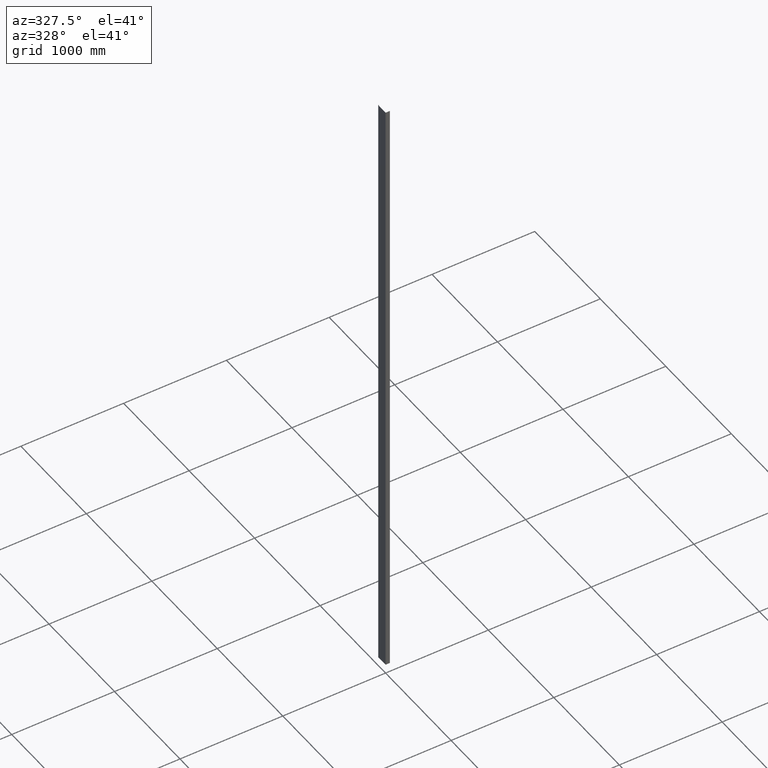
[diagram: clean part render]
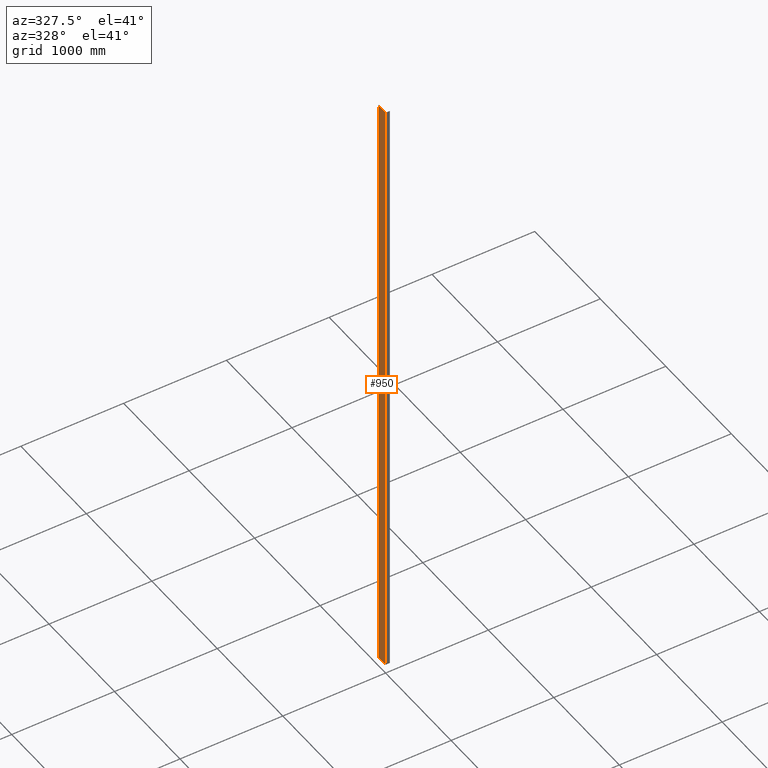
[diagram: same view with one face highlighted and labeled with its STEP entity id]
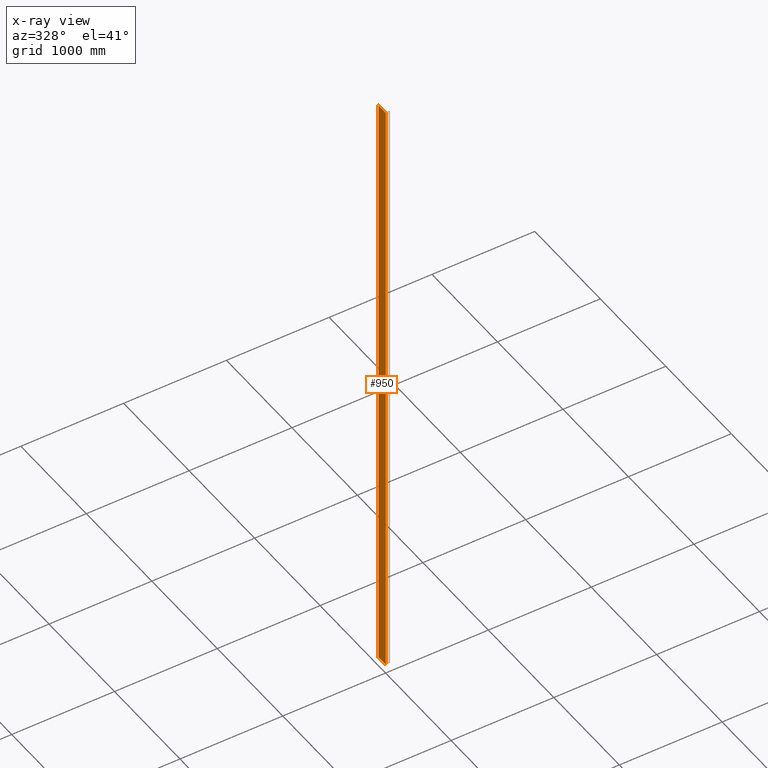
[diagram: x-ray of the same camera — body ghosted, the highlighted face saturated]
A machine part, auxiliary view. The second image highlights one B-rep face of the part: STEP entity #950.
The next image is the same camera in x-ray: the body ghosted, the highlighted face saturated — about 0% of this face is hidden behind the body in this view.
In plain terms, the highlighted planar face has unit normal (1, 0, -0).
Its self-contained STEP definition (entity closure, byte-faithful):
#950 = ADVANCED_FACE ( 'NONE', ( #10253 ), #7305, .F. ) ;
#1099 = LINE ( 'NONE', #7016, #11752 ) ;
#1340 = VECTOR ( 'NONE', #4384, 1000.000000000000000 ) ;
#2399 = EDGE_CURVE ( 'NONE', #2804, #3406, #1099, .T. ) ;
#2464 = EDGE_LOOP ( 'NONE', ( #4192, #10639, #7463, #10441 ) ) ;
#2804 = VERTEX_POINT ( 'NONE', #12902 ) ;
#2876 = CARTESIAN_POINT ( 'NONE',  ( -1.354459359858079800E-014, 112.3000000000011800, -3000.000000000000000 ) ) ;
#2929 = DIRECTION ( 'NONE',  ( 1.000000000000000000, 1.224646799147353000E-016, -0.0000000000000000000 ) ) ;
#3295 = CARTESIAN_POINT ( 'NONE',  ( -1.354459359858079800E-014, 112.3000000000011800, 3000.000000000000000 ) ) ;
#3406 = VERTEX_POINT ( 'NONE', #12279 ) ;
#3692 = CARTESIAN_POINT ( 'NONE',  ( -1.354459359858079800E-014, 112.3000000000011800, -3000.000000000000000 ) ) ;
#3955 = DIRECTION ( 'NONE',  ( -1.224646799147353000E-016, 1.000000000000000000, 0.0000000000000000000 ) ) ;
#4192 = ORIENTED_EDGE ( 'NONE', *, *, #8386, .T. ) ;
#4384 = DIRECTION ( 'NONE',  ( 1.224646799147353200E-016, -1.000000000000000000, 0.0000000000000000000 ) ) ;
#4681 = DIRECTION ( 'NONE',  ( -0.0000000000000000000, -0.0000000000000000000, -1.000000000000000000 ) ) ;
#5279 = EDGE_CURVE ( 'NONE', #10515, #6566, #8032, .T. ) ;
#5493 = CARTESIAN_POINT ( 'NONE',  ( -1.354459359858079800E-014, 112.3000000000011800, 3000.000000000000000 ) ) ;
#6122 = VECTOR ( 'NONE', #7742, 1000.000000000000000 ) ;
#6566 = VERTEX_POINT ( 'NONE', #2876 ) ;
#6827 = AXIS2_PLACEMENT_3D ( 'NONE', #11666, #2929, #3955 ) ;
#7016 = CARTESIAN_POINT ( 'NONE',  ( 0.0000000000000000000, 1.699999999910773100, 3000.000000000000000 ) ) ;
#7305 = PLANE ( 'NONE',  #6827 ) ;
#7463 = ORIENTED_EDGE ( 'NONE', *, *, #9840, .F. ) ;
#7641 = LINE ( 'NONE', #3295, #1340 ) ;
#7742 = DIRECTION ( 'NONE',  ( 1.224646799147353200E-016, -1.000000000000000000, 0.0000000000000000000 ) ) ;
#8032 = LINE ( 'NONE', #8938, #9022 ) ;
#8386 = EDGE_CURVE ( 'NONE', #6566, #3406, #11527, .T. ) ;
#8938 = CARTESIAN_POINT ( 'NONE',  ( -1.354459359858079800E-014, 112.3000000000011800, 3000.000000000000000 ) ) ;
#9022 = VECTOR ( 'NONE', #4681, 1000.000000000000000 ) ;
#9840 = EDGE_CURVE ( 'NONE', #10515, #2804, #7641, .T. ) ;
#10253 = FACE_OUTER_BOUND ( 'NONE', #2464, .T. ) ;
#10441 = ORIENTED_EDGE ( 'NONE', *, *, #5279, .T. ) ;
#10515 = VERTEX_POINT ( 'NONE', #5493 ) ;
#10639 = ORIENTED_EDGE ( 'NONE', *, *, #2399, .F. ) ;
#11527 = LINE ( 'NONE', #3692, #6122 ) ;
#11666 = CARTESIAN_POINT ( 'NONE',  ( -1.354459359858079800E-014, 112.3000000000011800, 3000.000000000000000 ) ) ;
#11752 = VECTOR ( 'NONE', #13313, 1000.000000000000000 ) ;
#12279 = CARTESIAN_POINT ( 'NONE',  ( 0.0000000000000000000, 1.699999999910773100, -3000.000000000000000 ) ) ;
#12902 = CARTESIAN_POINT ( 'NONE',  ( 0.0000000000000000000, 1.699999999910773100, 3000.000000000000000 ) ) ;
#13313 = DIRECTION ( 'NONE',  ( -0.0000000000000000000, -0.0000000000000000000, -1.000000000000000000 ) ) ;